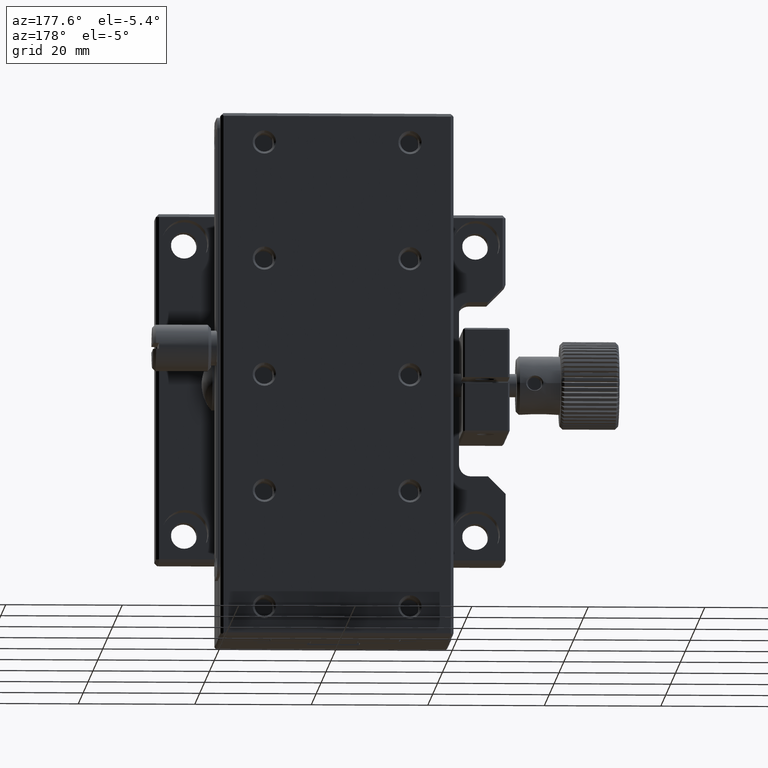
[diagram: clean part render]
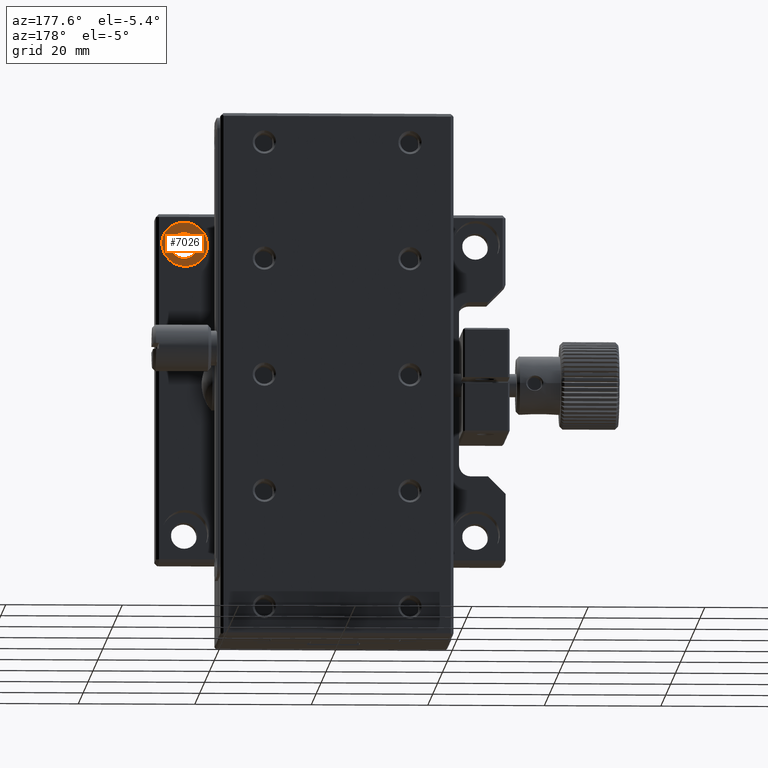
[diagram: same view with one face highlighted and labeled with its STEP entity id]
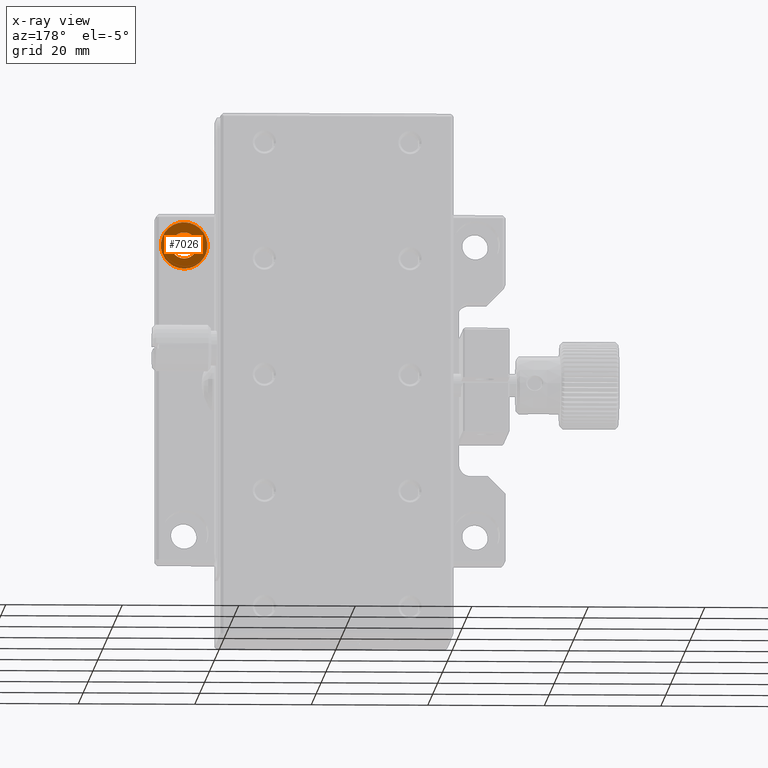
[diagram: x-ray of the same camera — body ghosted, the highlighted face saturated]
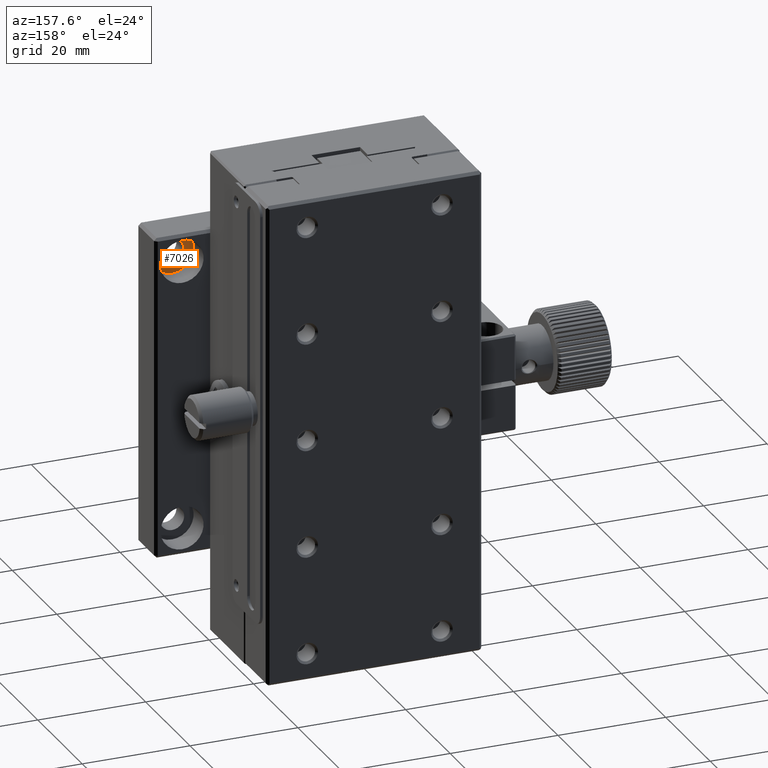
[diagram: same view with one face highlighted and labeled with its STEP entity id]
A machine part, auxiliary view. The second image highlights one B-rep face of the part: STEP entity #7026.
The next image is the same camera in x-ray: the body ghosted, the highlighted face saturated — about 0% of this face is hidden behind the body in this view.
A second angle (auxiliary view) of the same face is appended — the face is thin or edge-on in the first view.
In plain terms, the highlighted planar face has unit normal (0, 1, 0).
Its self-contained STEP definition (entity closure, byte-faithful):
#978 = CARTESIAN_POINT ( 'NONE',  ( 25.00000000000000000, -4.500000000000000888, 25.00000000000000000 ) ) ;
#1385 = DIRECTION ( 'NONE',  ( 0.000000000000000000, -0.000000000000000000, 1.000000000000000000 ) ) ;
#2117 = EDGE_LOOP ( 'NONE', ( #5990 ) ) ;
#2209 = PLANE ( 'NONE',  #4605 ) ;
#2625 = DIRECTION ( 'NONE',  ( 0.000000000000000000, 1.000000000000000000, 0.000000000000000000 ) ) ;
#2860 = VERTEX_POINT ( 'NONE', #12454 ) ;
#3467 = FACE_BOUND ( 'NONE', #11024, .T. ) ;
#4605 = AXIS2_PLACEMENT_3D ( 'NONE', #978, #2625, #1385 ) ;
#5806 = DIRECTION ( 'NONE',  ( 0.000000000000000000, 0.000000000000000000, 1.000000000000000000 ) ) ;
#5880 = DIRECTION ( 'NONE',  ( 0.000000000000000000, 1.000000000000000000, 0.000000000000000000 ) ) ;
#5990 = ORIENTED_EDGE ( 'NONE', *, *, #10142, .T. ) ;
#7026 = ADVANCED_FACE ( 'NONE', ( #13711, #3467 ), #2209, .T. ) ;
#7197 = DIRECTION ( 'NONE',  ( 0.000000000000000000, 0.000000000000000000, -1.000000000000000000 ) ) ;
#7627 = VERTEX_POINT ( 'NONE', #7699 ) ;
#7644 = AXIS2_PLACEMENT_3D ( 'NONE', #12354, #5880, #5806 ) ;
#7699 = CARTESIAN_POINT ( 'NONE',  ( 25.00000000000000000, -4.500000000000000888, 29.00000000000000000 ) ) ;
#8738 = ORIENTED_EDGE ( 'NONE', *, *, #11117, .T. ) ;
#9815 = CARTESIAN_POINT ( 'NONE',  ( 25.00000000000000000, -4.500000000000000888, 25.00000000000000000 ) ) ;
#10142 = EDGE_CURVE ( 'NONE', #7627, #7627, #14673, .T. ) ;
#10747 = AXIS2_PLACEMENT_3D ( 'NONE', #9815, #13338, #7197 ) ;
#11024 = EDGE_LOOP ( 'NONE', ( #8738 ) ) ;
#11117 = EDGE_CURVE ( 'NONE', #2860, #2860, #14396, .T. ) ;
#12354 = CARTESIAN_POINT ( 'NONE',  ( 25.00000000000000000, -4.500000000000000888, 25.00000000000000000 ) ) ;
#12454 = CARTESIAN_POINT ( 'NONE',  ( 25.00000000000000000, -4.500000000000000888, 22.75000000000000000 ) ) ;
#13338 = DIRECTION ( 'NONE',  ( 0.000000000000000000, -1.000000000000000000, 0.000000000000000000 ) ) ;
#13711 = FACE_OUTER_BOUND ( 'NONE', #2117, .T. ) ;
#14396 = CIRCLE ( 'NONE', #10747, 2.250000000000001776 ) ;
#14673 = CIRCLE ( 'NONE', #7644, 4.000000000000000000 ) ;